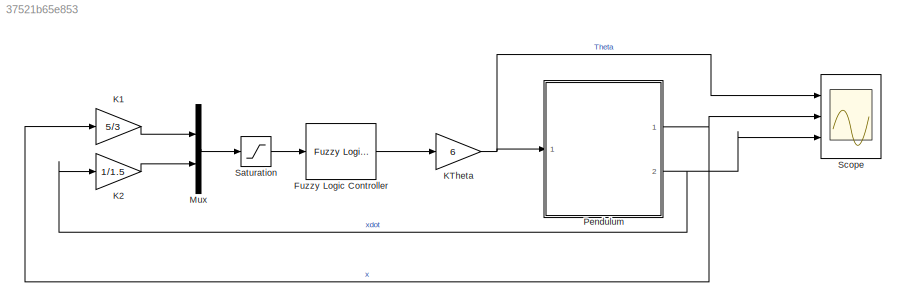
MODEL slx_37521b65e853
KIND model
CONFIG AbsTol = auto
CONFIG EnableMultiTasking = off
CONFIG FixedStep = 0.001
CONFIG MaxStep = auto
CONFIG MinStep = auto
CONFIG RelTol = 1e-3
CONFIG SampleTimeConstraint = Unconstrained
CONFIG Solver = ode5
CONFIG SolverName = ode5
CONFIG StartTime = 0.0
CONFIG StopTime = 2.0
BLOCK [Reference] Fuzzy Logic Controller  REF=fuzblock/Fuzzy Logic   (lib defined in mdl_858b3b3e7478)
Controller
  Ports = [1, 1]
  SourceBlock = fuzblock/Fuzzy Logic \nController
  SourceProductBaseCode = FL
  SourceProductName = Fuzzy Logic Toolbox
  SourceType = Fuzzy Inference System
BLOCK [Gain] K1
  Gain = 5/3
  OutDataTypeStr = Inherit: Inherit via internal rule
  ParamDataTypeStr = Inherit: Inherit via internal rule
  SaturateOnIntegerOverflow = off
BLOCK [Gain] K2
  Gain = 1/1.5
  OutDataTypeStr = Inherit: Inherit via internal rule
  ParamDataTypeStr = Inherit: Inherit via internal rule
  SaturateOnIntegerOverflow = off
BLOCK [Gain] KTheta
  Gain = 6
  OutDataTypeStr = Inherit: Inherit via internal rule
  ParamDataTypeStr = Inherit: Inherit via internal rule
  SaturateOnIntegerOverflow = off
BLOCK [Mux] Mux
  DisplayOption = bar
  Inputs = 2
  Ports = [2, 1]
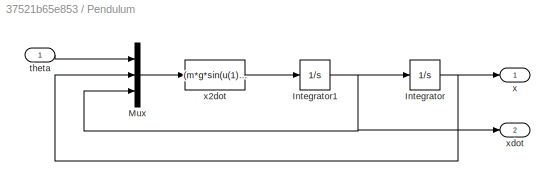
BLOCK [SubSystem] Pendulum
  Ports = [1, 2]
  RequestExecContextInheritance = off
  Variant = off
BLOCK [Integrator] Pendulum/Integrator
  InitialCondition = x0
  Ports = [1, 1]
BLOCK [Integrator] Pendulum/Integrator1
  InitialCondition = xdot0
  Ports = [1, 1]
BLOCK [Mux] Pendulum/Mux
  DisplayOption = bar
  Inputs = 3
  Ports = [3, 1]
BLOCK [Inport] Pendulum/theta
  IconDisplay = Port number
BLOCK [Outport] Pendulum/x
  IconDisplay = Port number
BLOCK [Fcn] Pendulum/x2dot
  Expr = (m*g*sin(u(1))-b*u(3))/((J/R/R)+m)
BLOCK [Outport] Pendulum/xdot
  IconDisplay = Port number
  Port = 2
BLOCK [Saturate] Saturation
  InputPortMap = u0
  LowerLimit = -1
  Ports = [1, 1]
  UpperLimit = 1
BLOCK [Scope] Scope
  NumInputPorts = 3
  Ports = [3]
  ScopeSpecificationString = Simulink.scopes.TimeScopeBlockCfg('CurrentConfiguration', extmgr.ConfigurationSet(extmgr.Configuration('Core','General UI',true,'FigureColor',[1 1 1]),extmgr.Configuration('Core','Source UI',true),extmgr.Configuration('Sources','WiredSimulink',true),extmgr.Configuration('Visuals','Time Domain',true,'SerializedDisplays',{struct('MinYLimReal','-3.44872','MaxYLimReal','1.03851','YLabelReal','','MinYL...<+5450ch>
LINE Fuzzy Logic Controller:1 -> KTheta:1
LINE K1:1 -> Mux:1
LINE K2:1 -> Mux:2
NET KTheta:1 -> Pendulum:1, Scope:1
LINE Mux:1 -> Saturation:1
NET Pendulum/Integrator1:1 -> Pendulum/Integrator:1, Pendulum/Mux:3, Pendulum/xdot:1
NET Pendulum/Integrator:1 -> Pendulum/Mux:2, Pendulum/x:1
LINE Pendulum/Mux:1 -> Pendulum/x2dot:1
LINE Pendulum/theta:1 -> Pendulum/Mux:1
LINE Pendulum/x2dot:1 -> Pendulum/Integrator1:1
NET Pendulum:1 -> K1:1, Scope:2
NET Pendulum:2 -> K2:1, Scope:3
LINE Saturation:1 -> Fuzzy Logic Controller:1
note: NET lines group one-source signal fan-out (src -> all destinations, sorted); 1:1 wires keep LINE
